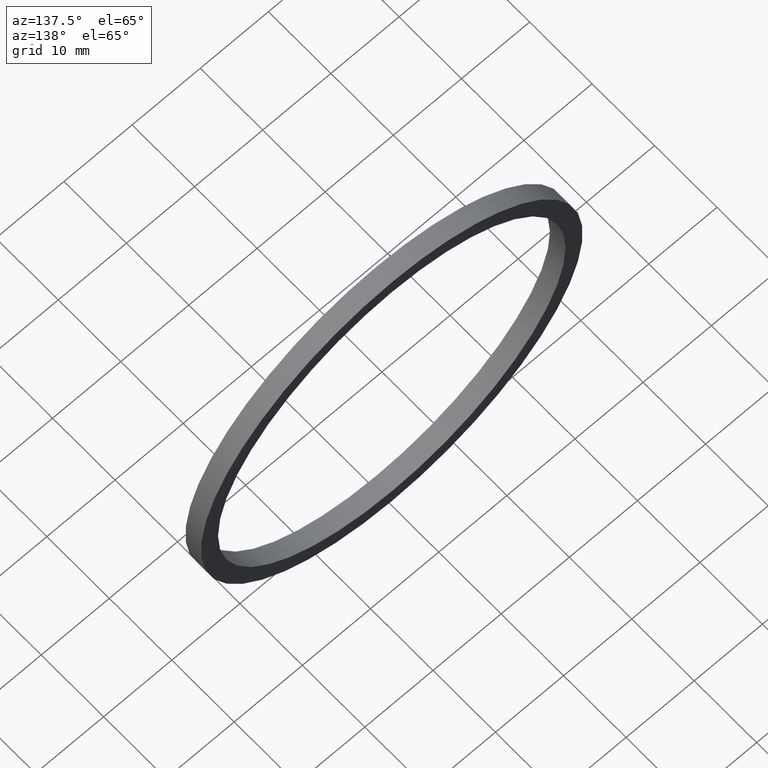
[diagram: clean part render]
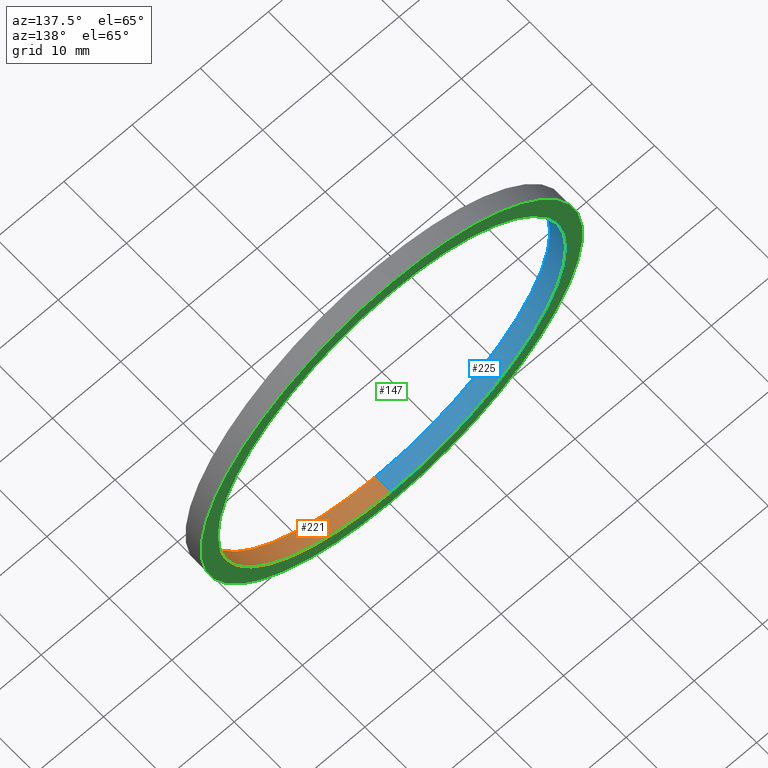
[diagram: same view with three faces highlighted in distinct colors, each labeled with its STEP entity id]
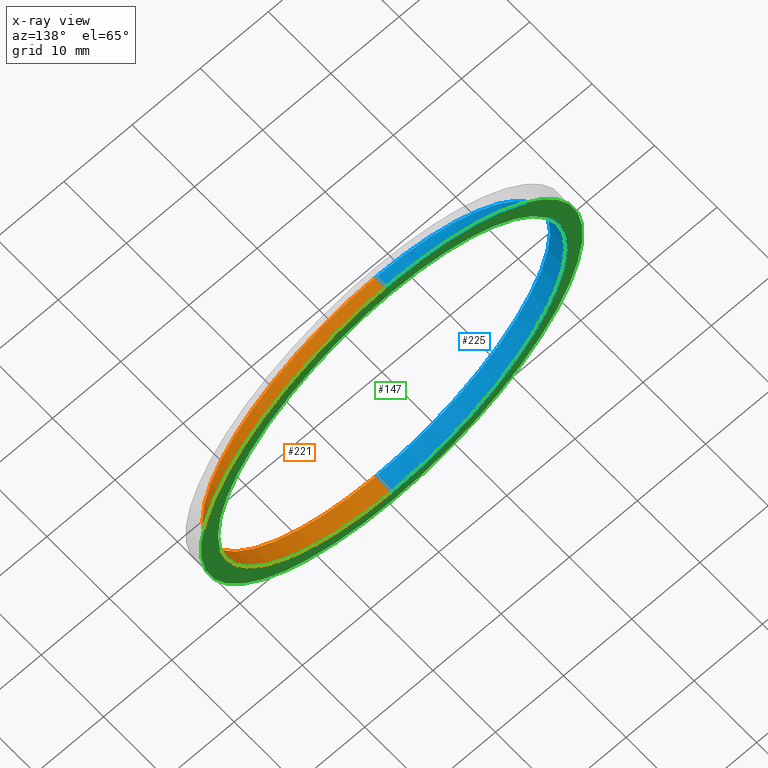
[diagram: x-ray of the same camera — body ghosted, the three highlighted faces saturated]
A machine part, auxiliary view with three faces highlighted in distinct colors.
The next image is the same camera in x-ray (body ghosted, the three faces saturated) — at least one of them is partly hidden behind the body in this view.
Their STEP definitions:

[orange] entity #221 — the highlighted cylindrical surface (partial cylindrical patch) has radius 25.5 mm, axis along (-0, 1, -0).
#2 = CARTESIAN_POINT ( 'NONE',  ( 3.122849337825750600E-015, 0.0000000000000000000, -25.50000000000000000 ) ) ;
#5 = CARTESIAN_POINT ( 'NONE',  ( 3.122849337825751000E-015, 77.14414226561778800, -25.50000000000000400 ) ) ;
#14 = LINE ( 'NONE', #5, #54 ) ;
#30 = VERTEX_POINT ( 'NONE', #2 ) ;
#34 = ORIENTED_EDGE ( 'NONE', *, *, #142, .T. ) ;
#35 = VECTOR ( 'NONE', #57, 1000.000000000000000 ) ;
#50 = EDGE_CURVE ( 'NONE', #30, #209, #14, .T. ) ;
#54 = VECTOR ( 'NONE', #154, 1000.000000000000000 ) ;
#57 = DIRECTION ( 'NONE',  ( -0.0000000000000000000, 1.000000000000000000, -0.0000000000000000000 ) ) ;
#79 = DIRECTION ( 'NONE',  ( -0.0000000000000000000, 1.000000000000000000, -0.0000000000000000000 ) ) ;
#83 = FACE_OUTER_BOUND ( 'NONE', #127, .T. ) ;
#92 = LINE ( 'NONE', #95, #35 ) ;
#95 = CARTESIAN_POINT ( 'NONE',  ( 0.0000000000000000000, 77.14414226561778800, 25.50000000000000400 ) ) ;
#98 = CIRCLE ( 'NONE', #242, 25.50000000000000000 ) ;
#106 = AXIS2_PLACEMENT_3D ( 'NONE', #151, #79, #137 ) ;
#108 = EDGE_CURVE ( 'NONE', #152, #209, #115, .T. ) ;
#111 = DIRECTION ( 'NONE',  ( -0.0000000000000000000, 1.000000000000000000, -0.0000000000000000000 ) ) ;
#115 = CIRCLE ( 'NONE', #167, 25.50000000000000700 ) ;
#117 = CARTESIAN_POINT ( 'NONE',  ( 0.0000000000000000000, 2.500000000000002200, 25.50000000000000700 ) ) ;
#122 = ORIENTED_EDGE ( 'NONE', *, *, #50, .F. ) ;
#127 = EDGE_LOOP ( 'NONE', ( #122, #145, #34, #139 ) ) ;
#131 = DIRECTION ( 'NONE',  ( -0.0000000000000000000, 1.000000000000000000, -0.0000000000000000000 ) ) ;
#137 = DIRECTION ( 'NONE',  ( 0.0000000000000000000, 0.0000000000000000000, 1.000000000000000000 ) ) ;
#139 = ORIENTED_EDGE ( 'NONE', *, *, #108, .T. ) ;
#142 = EDGE_CURVE ( 'NONE', #228, #152, #92, .T. ) ;
#145 = ORIENTED_EDGE ( 'NONE', *, *, #161, .F. ) ;
#151 = CARTESIAN_POINT ( 'NONE',  ( 0.0000000000000000000, 77.14414226561778800, 0.0000000000000000000 ) ) ;
#152 = VERTEX_POINT ( 'NONE', #117 ) ;
#154 = DIRECTION ( 'NONE',  ( -0.0000000000000000000, 1.000000000000000000, -0.0000000000000000000 ) ) ;
#161 = EDGE_CURVE ( 'NONE', #228, #30, #98, .T. ) ;
#167 = AXIS2_PLACEMENT_3D ( 'NONE', #171, #131, #192 ) ;
#168 = CARTESIAN_POINT ( 'NONE',  ( 0.0000000000000000000, 0.0000000000000000000, 0.0000000000000000000 ) ) ;
#171 = CARTESIAN_POINT ( 'NONE',  ( 0.0000000000000000000, 2.500000000000002200, 0.0000000000000000000 ) ) ;
#192 = DIRECTION ( 'NONE',  ( 0.0000000000000000000, 0.0000000000000000000, 1.000000000000000000 ) ) ;
#209 = VERTEX_POINT ( 'NONE', #214 ) ;
#214 = CARTESIAN_POINT ( 'NONE',  ( 3.122849337825751800E-015, 2.500000000000002200, -25.50000000000000700 ) ) ;
#218 = CYLINDRICAL_SURFACE ( 'NONE', #106, 25.50000000000000400 ) ;
#221 = ADVANCED_FACE ( 'NONE', ( #83 ), #218, .F. ) ;
#228 = VERTEX_POINT ( 'NONE', #240 ) ;
#232 = DIRECTION ( 'NONE',  ( 0.0000000000000000000, 0.0000000000000000000, 1.000000000000000000 ) ) ;
#240 = CARTESIAN_POINT ( 'NONE',  ( 0.0000000000000000000, 0.0000000000000000000, 25.50000000000000000 ) ) ;
#242 = AXIS2_PLACEMENT_3D ( 'NONE', #168, #111, #232 ) ;

[blue] entity #225 — the highlighted cylindrical surface (partial cylindrical patch) has radius 25.5 mm, axis along (-0, 1, -0).
#2 = CARTESIAN_POINT ( 'NONE',  ( 3.122849337825750600E-015, 0.0000000000000000000, -25.50000000000000000 ) ) ;
#4 = DIRECTION ( 'NONE',  ( 0.0000000000000000000, 0.0000000000000000000, 1.000000000000000000 ) ) ;
#5 = CARTESIAN_POINT ( 'NONE',  ( 3.122849337825751000E-015, 77.14414226561778800, -25.50000000000000400 ) ) ;
#14 = LINE ( 'NONE', #5, #54 ) ;
#30 = VERTEX_POINT ( 'NONE', #2 ) ;
#35 = VECTOR ( 'NONE', #57, 1000.000000000000000 ) ;
#37 = CYLINDRICAL_SURFACE ( 'NONE', #52, 25.50000000000000400 ) ;
#39 = EDGE_CURVE ( 'NONE', #30, #228, #89, .T. ) ;
#42 = DIRECTION ( 'NONE',  ( 0.0000000000000000000, 0.0000000000000000000, 1.000000000000000000 ) ) ;
#49 = ORIENTED_EDGE ( 'NONE', *, *, #39, .F. ) ;
#50 = EDGE_CURVE ( 'NONE', #30, #209, #14, .T. ) ;
#52 = AXIS2_PLACEMENT_3D ( 'NONE', #196, #82, #140 ) ;
#54 = VECTOR ( 'NONE', #154, 1000.000000000000000 ) ;
#55 = AXIS2_PLACEMENT_3D ( 'NONE', #58, #208, #4 ) ;
#57 = DIRECTION ( 'NONE',  ( -0.0000000000000000000, 1.000000000000000000, -0.0000000000000000000 ) ) ;
#58 = CARTESIAN_POINT ( 'NONE',  ( 0.0000000000000000000, 2.500000000000002200, 0.0000000000000000000 ) ) ;
#69 = EDGE_CURVE ( 'NONE', #209, #152, #128, .T. ) ;
#74 = EDGE_LOOP ( 'NONE', ( #49, #182, #91, #81 ) ) ;
#81 = ORIENTED_EDGE ( 'NONE', *, *, #142, .F. ) ;
#82 = DIRECTION ( 'NONE',  ( -0.0000000000000000000, 1.000000000000000000, -0.0000000000000000000 ) ) ;
#89 = CIRCLE ( 'NONE', #158, 25.50000000000000000 ) ;
#91 = ORIENTED_EDGE ( 'NONE', *, *, #69, .T. ) ;
#92 = LINE ( 'NONE', #95, #35 ) ;
#95 = CARTESIAN_POINT ( 'NONE',  ( 0.0000000000000000000, 77.14414226561778800, 25.50000000000000400 ) ) ;
#96 = CARTESIAN_POINT ( 'NONE',  ( 0.0000000000000000000, 0.0000000000000000000, 0.0000000000000000000 ) ) ;
#117 = CARTESIAN_POINT ( 'NONE',  ( 0.0000000000000000000, 2.500000000000002200, 25.50000000000000700 ) ) ;
#128 = CIRCLE ( 'NONE', #55, 25.50000000000000700 ) ;
#140 = DIRECTION ( 'NONE',  ( 0.0000000000000000000, 0.0000000000000000000, 1.000000000000000000 ) ) ;
#142 = EDGE_CURVE ( 'NONE', #228, #152, #92, .T. ) ;
#152 = VERTEX_POINT ( 'NONE', #117 ) ;
#154 = DIRECTION ( 'NONE',  ( -0.0000000000000000000, 1.000000000000000000, -0.0000000000000000000 ) ) ;
#158 = AXIS2_PLACEMENT_3D ( 'NONE', #96, #229, #42 ) ;
#182 = ORIENTED_EDGE ( 'NONE', *, *, #50, .T. ) ;
#196 = CARTESIAN_POINT ( 'NONE',  ( 0.0000000000000000000, 77.14414226561778800, 0.0000000000000000000 ) ) ;
#208 = DIRECTION ( 'NONE',  ( -0.0000000000000000000, 1.000000000000000000, -0.0000000000000000000 ) ) ;
#209 = VERTEX_POINT ( 'NONE', #214 ) ;
#214 = CARTESIAN_POINT ( 'NONE',  ( 3.122849337825751800E-015, 2.500000000000002200, -25.50000000000000700 ) ) ;
#224 = FACE_OUTER_BOUND ( 'NONE', #74, .T. ) ;
#225 = ADVANCED_FACE ( 'NONE', ( #224 ), #37, .F. ) ;
#228 = VERTEX_POINT ( 'NONE', #240 ) ;
#229 = DIRECTION ( 'NONE',  ( -0.0000000000000000000, 1.000000000000000000, -0.0000000000000000000 ) ) ;
#240 = CARTESIAN_POINT ( 'NONE',  ( 0.0000000000000000000, 0.0000000000000000000, 25.50000000000000000 ) ) ;

[green] entity #147 — the highlighted planar face has unit normal (0, -1, 0).
#3 = CIRCLE ( 'NONE', #190, 28.00000000000001100 ) ;
#4 = DIRECTION ( 'NONE',  ( 0.0000000000000000000, 0.0000000000000000000, 1.000000000000000000 ) ) ;
#6 = CIRCLE ( 'NONE', #13, 28.00000000000001100 ) ;
#13 = AXIS2_PLACEMENT_3D ( 'NONE', #193, #112, #80 ) ;
#16 = VERTEX_POINT ( 'NONE', #109 ) ;
#22 = CARTESIAN_POINT ( 'NONE',  ( 25.50000000000000700, 2.500000000000000000, 0.0000000000000000000 ) ) ;
#38 = PLANE ( 'NONE',  #184 ) ;
#40 = CARTESIAN_POINT ( 'NONE',  ( 3.429011037612590100E-015, 2.500000000000002200, -28.00000000000001100 ) ) ;
#47 = EDGE_CURVE ( 'NONE', #78, #16, #3, .T. ) ;
#55 = AXIS2_PLACEMENT_3D ( 'NONE', #58, #208, #4 ) ;
#58 = CARTESIAN_POINT ( 'NONE',  ( 0.0000000000000000000, 2.500000000000002200, 0.0000000000000000000 ) ) ;
#62 = DIRECTION ( 'NONE',  ( -0.0000000000000000000, 1.000000000000000000, -0.0000000000000000000 ) ) ;
#69 = EDGE_CURVE ( 'NONE', #209, #152, #128, .T. ) ;
#77 = DIRECTION ( 'NONE',  ( 0.0000000000000000000, -0.0000000000000000000, -1.000000000000000000 ) ) ;
#78 = VERTEX_POINT ( 'NONE', #40 ) ;
#80 = DIRECTION ( 'NONE',  ( 0.0000000000000000000, 0.0000000000000000000, 1.000000000000000000 ) ) ;
#105 = EDGE_CURVE ( 'NONE', #16, #78, #6, .T. ) ;
#108 = EDGE_CURVE ( 'NONE', #152, #209, #115, .T. ) ;
#109 = CARTESIAN_POINT ( 'NONE',  ( 0.0000000000000000000, 2.500000000000002200, 28.00000000000001100 ) ) ;
#112 = DIRECTION ( 'NONE',  ( -0.0000000000000000000, 1.000000000000000000, -0.0000000000000000000 ) ) ;
#115 = CIRCLE ( 'NONE', #167, 25.50000000000000700 ) ;
#116 = CARTESIAN_POINT ( 'NONE',  ( 0.0000000000000000000, 2.500000000000002200, 0.0000000000000000000 ) ) ;
#117 = CARTESIAN_POINT ( 'NONE',  ( 0.0000000000000000000, 2.500000000000002200, 25.50000000000000700 ) ) ;
#121 = ORIENTED_EDGE ( 'NONE', *, *, #105, .T. ) ;
#128 = CIRCLE ( 'NONE', #55, 25.50000000000000700 ) ;
#131 = DIRECTION ( 'NONE',  ( -0.0000000000000000000, 1.000000000000000000, -0.0000000000000000000 ) ) ;
#134 = ORIENTED_EDGE ( 'NONE', *, *, #69, .F. ) ;
#147 = ADVANCED_FACE ( 'NONE', ( #183, #212 ), #38, .F. ) ;
#152 = VERTEX_POINT ( 'NONE', #117 ) ;
#167 = AXIS2_PLACEMENT_3D ( 'NONE', #171, #131, #192 ) ;
#169 = ORIENTED_EDGE ( 'NONE', *, *, #47, .T. ) ;
#171 = CARTESIAN_POINT ( 'NONE',  ( 0.0000000000000000000, 2.500000000000002200, 0.0000000000000000000 ) ) ;
#183 = FACE_BOUND ( 'NONE', #186, .T. ) ;
#184 = AXIS2_PLACEMENT_3D ( 'NONE', #22, #234, #77 ) ;
#186 = EDGE_LOOP ( 'NONE', ( #206, #134 ) ) ;
#190 = AXIS2_PLACEMENT_3D ( 'NONE', #116, #62, #191 ) ;
#191 = DIRECTION ( 'NONE',  ( 0.0000000000000000000, 0.0000000000000000000, 1.000000000000000000 ) ) ;
#192 = DIRECTION ( 'NONE',  ( 0.0000000000000000000, 0.0000000000000000000, 1.000000000000000000 ) ) ;
#193 = CARTESIAN_POINT ( 'NONE',  ( 0.0000000000000000000, 2.500000000000002200, 0.0000000000000000000 ) ) ;
#206 = ORIENTED_EDGE ( 'NONE', *, *, #108, .F. ) ;
#208 = DIRECTION ( 'NONE',  ( -0.0000000000000000000, 1.000000000000000000, -0.0000000000000000000 ) ) ;
#209 = VERTEX_POINT ( 'NONE', #214 ) ;
#212 = FACE_OUTER_BOUND ( 'NONE', #241, .T. ) ;
#214 = CARTESIAN_POINT ( 'NONE',  ( 3.122849337825751800E-015, 2.500000000000002200, -25.50000000000000700 ) ) ;
#234 = DIRECTION ( 'NONE',  ( 0.0000000000000000000, -1.000000000000000000, 0.0000000000000000000 ) ) ;
#241 = EDGE_LOOP ( 'NONE', ( #121, #169 ) ) ;